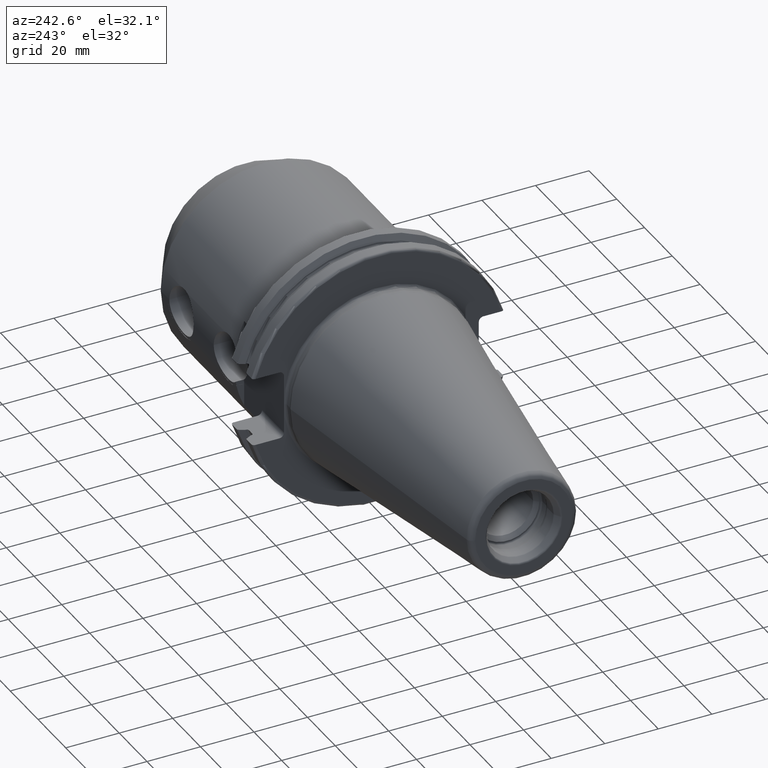
[diagram: clean part render]
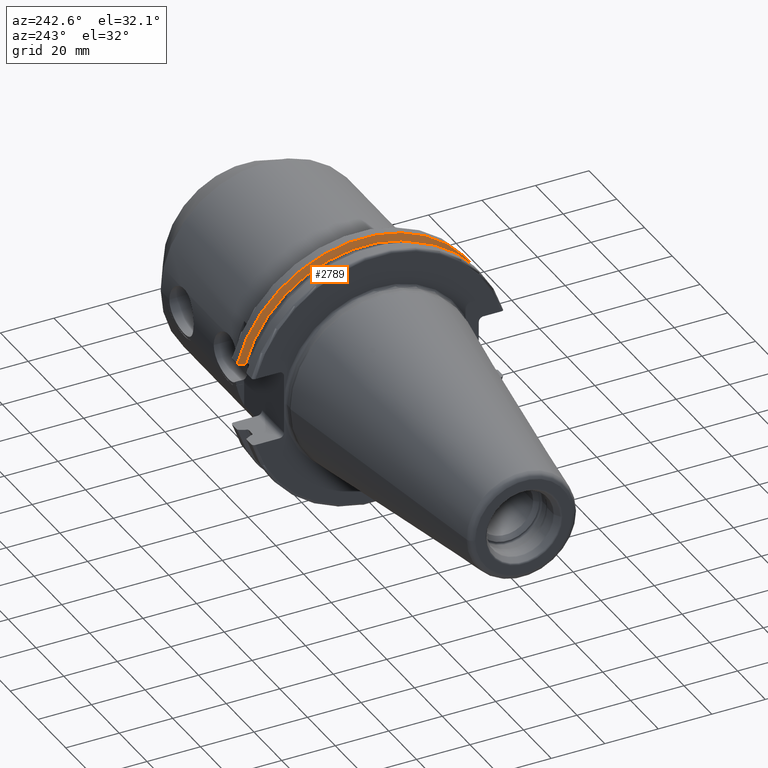
[diagram: same view with one face highlighted and labeled with its STEP entity id]
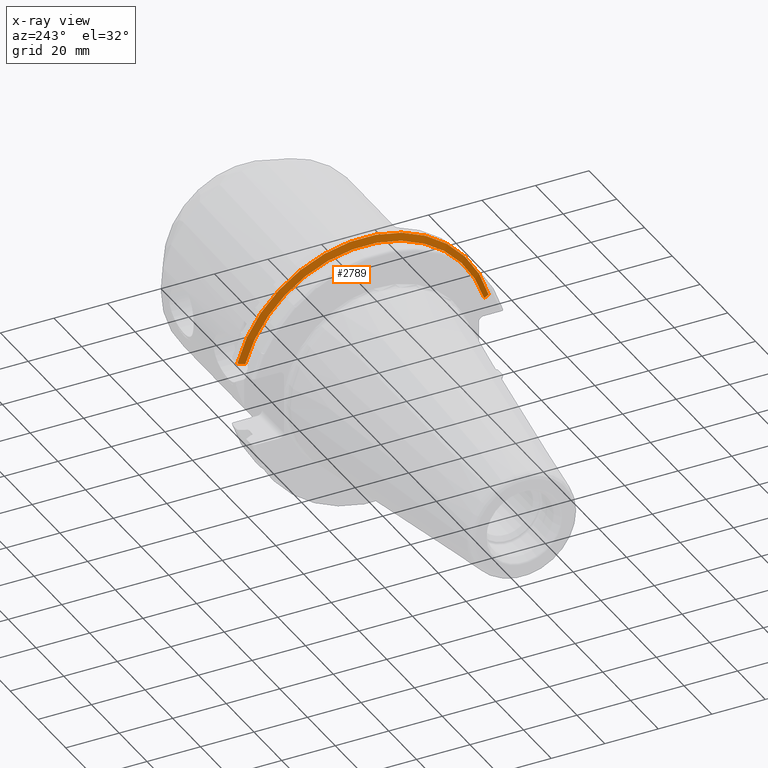
[diagram: x-ray of the same camera — body ghosted, the highlighted face saturated]
A machine part, auxiliary view. The second image highlights one B-rep face of the part: STEP entity #2789.
The next image is the same camera in x-ray: the body ghosted, the highlighted face saturated — about 0% of this face is hidden behind the body in this view.
In plain terms, the highlighted conical surface has half-angle 60 deg.
Its self-contained STEP definition (entity closure, byte-faithful):
#764=CARTESIAN_POINT('',(1.441537838583E1,0.E0,0.E0));
#765=DIRECTION('',(1.E0,0.E0,0.E0));
#766=DIRECTION('',(0.E0,9.643354064066E-1,2.646832521159E-1));
#767=AXIS2_PLACEMENT_3D('',#764,#765,#766);
#928=CARTESIAN_POINT('',(1.441537838583E1,4.699929686974E1,1.29E1));
#929=CARTESIAN_POINT('',(1.426451908496E1,4.672833723043E1,1.29E1));
#930=CARTESIAN_POINT('',(1.396501135619E1,4.619006057422E1,1.29E1));
#931=CARTESIAN_POINT('',(1.352242021955E1,4.539363402665E1,1.29E1));
#932=CARTESIAN_POINT('',(1.323173924582E1,4.486988275438E1,1.29E1));
#933=CARTESIAN_POINT('',(1.30875E1,4.460981716077E1,1.29E1));
#935=CARTESIAN_POINT('',(1.30875E1,-4.460981716077E1,1.29E1));
#936=CARTESIAN_POINT('',(1.323171622645E1,-4.486984125009E1,1.29E1));
#937=CARTESIAN_POINT('',(1.352236645045E1,-4.539353719098E1,1.29E1));
#938=CARTESIAN_POINT('',(1.396495664446E1,-4.618996220278E1,1.29E1));
#939=CARTESIAN_POINT('',(1.426449561388E1,-4.672829507383E1,1.29E1));
#940=CARTESIAN_POINT('',(1.441537838583E1,-4.699929686974E1,1.29E1));
#942=CARTESIAN_POINT('',(1.30875E1,0.E0,0.E0));
#943=DIRECTION('',(1.E0,0.E0,0.E0));
#944=DIRECTION('',(0.E0,9.606411165078E-1,2.777924499957E-1));
#945=AXIS2_PLACEMENT_3D('',#942,#943,#944);
#1683=CARTESIAN_POINT('',(1.30875E1,4.460981716077E1,1.29E1));
#1684=VERTEX_POINT('',#1683);
#1693=CARTESIAN_POINT('',(1.30875E1,-4.460981716077E1,1.29E1));
#1694=VERTEX_POINT('',#1693);
#1695=VERTEX_POINT('',#928);
#1696=VERTEX_POINT('',#940);
#2778=CARTESIAN_POINT('',(1.375143919291E1,0.E0,0.E0));
#2779=DIRECTION('',(1.E0,0.E0,0.E0));
#2780=DIRECTION('',(0.E0,-1.E0,0.E0));
#2781=AXIS2_PLACEMENT_3D('',#2778,#2779,#2780);
#2782=CONICAL_SURFACE('',#2781,4.758752358474E1,6.E1);
#2783=ORIENTED_EDGE('',*,*,#2574,.F.);
#2784=ORIENTED_EDGE('',*,*,#2631,.T.);
#2785=ORIENTED_EDGE('',*,*,#2540,.F.);
#2786=ORIENTED_EDGE('',*,*,#2739,.F.);
#2787=EDGE_LOOP('',(#2783,#2784,#2785,#2786));
#2788=FACE_OUTER_BOUND('',#2787,.F.);
#2789=ADVANCED_FACE('',(#2788),#2782,.T.);
#768=CIRCLE('',#767,4.87375E1);
#934=B_SPLINE_CURVE_WITH_KNOTS('',3,(#928,#929,#930,#931,#932,#933),
.UNSPECIFIED.,.F.,.F.,(4,1,1,4),(0.E0,3.333333333333E-1,6.666666666667E-1,1.E0),
.UNSPECIFIED.);
#941=B_SPLINE_CURVE_WITH_KNOTS('',3,(#935,#936,#937,#938,#939,#940),
.UNSPECIFIED.,.F.,.F.,(4,1,1,4),(0.E0,3.333333333333E-1,6.666666666667E-1,1.E0),
.UNSPECIFIED.);
#946=CIRCLE('',#945,4.643754716948E1);
#2540=EDGE_CURVE('',#1694,#1696,#941,.T.);
#2574=EDGE_CURVE('',#1695,#1684,#934,.T.);
#2631=EDGE_CURVE('',#1695,#1696,#768,.T.);
#2739=EDGE_CURVE('',#1684,#1694,#946,.T.);